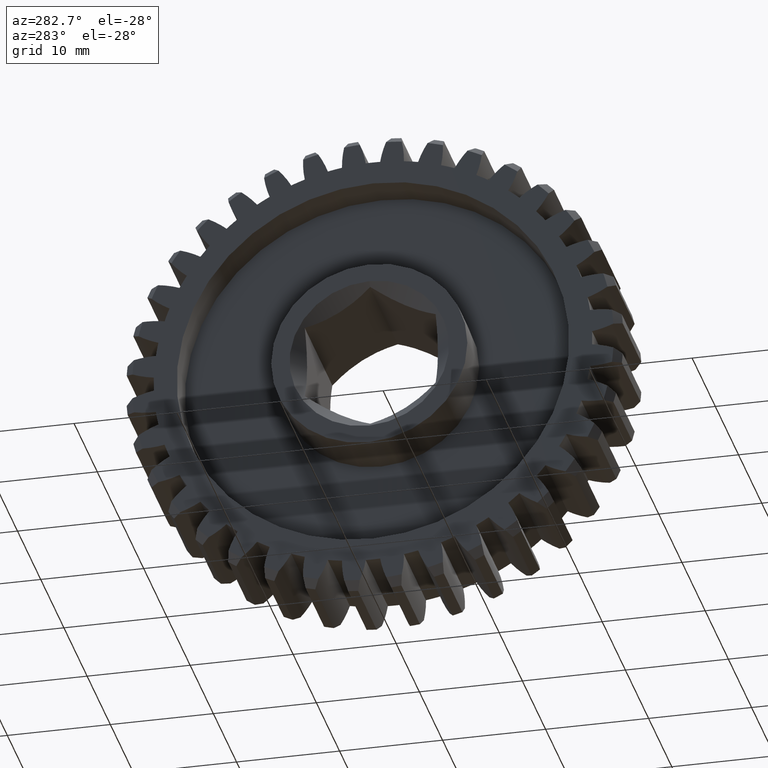
[diagram: clean part render]
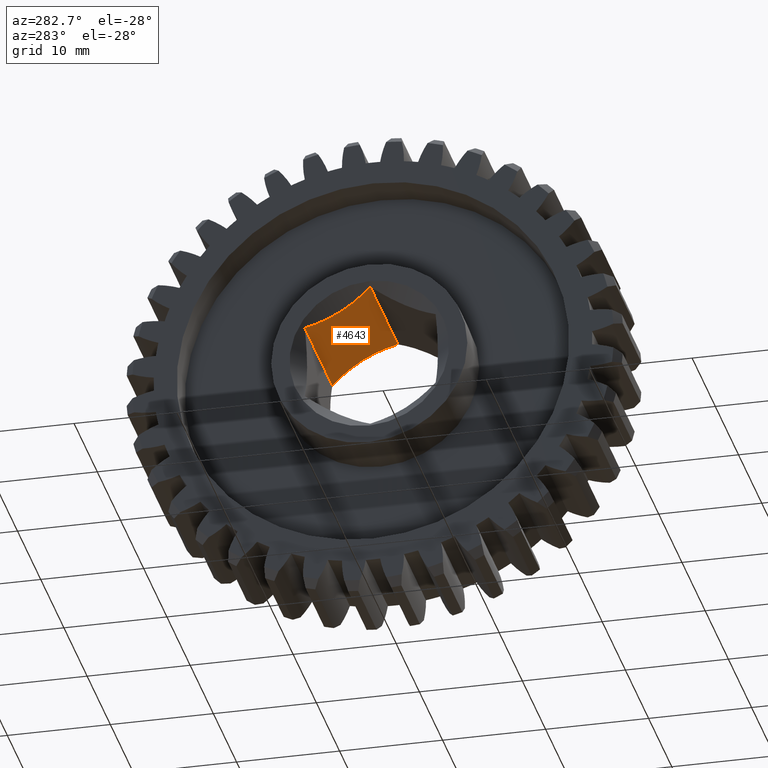
[diagram: same view with one face highlighted and labeled with its STEP entity id]
A machine part, auxiliary view. The second image highlights one B-rep face of the part: STEP entity #4643.
In plain terms, the highlighted planar face has unit normal (0, 0.5, 0.866).
Its self-contained STEP definition (entity closure, byte-faithful):
#87 = CARTESIAN_POINT ( 'NONE',  ( 0.3824470004003616697, 0.1036358322685734801, 0.2288409589368611274 ) ) ;
#361 = DIRECTION ( 'NONE',  ( 1.000000000000000000, -0.000000000000000000, -0.000000000000000000 ) ) ;
#441 = CARTESIAN_POINT ( 'NONE',  ( -0.02530907099823736378, 0.2104931627317132847, 0.1671468504290824220 ) ) ;
#732 = VECTOR ( 'NONE', #361, 39.37007874015748143 ) ;
#917 = ORIENTED_EDGE ( 'NONE', *, *, #2755, .F. ) ;
#965 = CARTESIAN_POINT ( 'NONE',  ( -0.03483126945468082575, 0.01964815077690897083, 0.2773312694546861135 ) ) ;
#969 = CARTESIAN_POINT ( 'NONE',  ( -0.06250000000000001388, -3.374144560972920525E-17, 0.2886751345948129210 ) ) ;
#1047 = EDGE_CURVE ( 'NONE', #8470, #1610, #6949, .T. ) ;
#1311 = CARTESIAN_POINT ( 'NONE',  ( 0.3835399852344827387, 0.1474422198941728046, 0.2035493292489962691 ) ) ;
#1342 = VERTEX_POINT ( 'NONE', #7492 ) ;
#1610 = VERTEX_POINT ( 'NONE', #8076 ) ;
#2153 = CARTESIAN_POINT ( 'NONE',  ( -0.06250000000000001388, 0.2500000000000000000, 0.1443375672974063495 ) ) ;
#2299 = ORIENTED_EDGE ( 'NONE', *, *, #1047, .F. ) ;
#2454 = CARTESIAN_POINT ( 'NONE',  ( -0.007447000400361507462, 0.1036358322685734384, 0.2288409589368610997 ) ) ;
#2669 = DIRECTION ( 'NONE',  ( 0.000000000000000000, 0.5000000000000003331, 0.8660254037844385966 ) ) ;
#2755 = EDGE_CURVE ( 'NONE', #1342, #8470, #4445, .T. ) ;
#2784 = ORIENTED_EDGE ( 'NONE', *, *, #3890, .T. ) ;
#3044 = CARTESIAN_POINT ( 'NONE',  ( 0.4211751345948129832, -3.050544101650794777E-17, 0.2886751345948129210 ) ) ;
#3241 = CARTESIAN_POINT ( 'NONE',  ( 0.4098976822178004298, 0.2304668795030758444, 0.1556150196744189307 ) ) ;
#3378 = FACE_OUTER_BOUND ( 'NONE', #5209, .T. ) ;
#3890 = EDGE_CURVE ( 'NONE', #1342, #8520, #4085, .T. ) ;
#3899 = DIRECTION ( 'NONE',  ( 0.000000000000000000, -0.8660254037844384856, 0.5000000000000002220 ) ) ;
#3966 = VECTOR ( 'NONE', #6109, 39.37007874015748143 ) ;
#3991 = PLANE ( 'NONE',  #4929 ) ;
#4030 = CARTESIAN_POINT ( 'NONE',  ( 0.3900339217850993800, 0.1794609254470762028, 0.1850633209789239175 ) ) ;
#4085 = LINE ( 'NONE', #2153, #3966 ) ;
#4292 = CARTESIAN_POINT ( 'NONE',  ( -0.01126284641317527001, 0.08218411835378909569, 0.2412261117401406363 ) ) ;
#4426 = CARTESIAN_POINT ( 'NONE',  ( -0.03489768221780037427, 0.2304668795030758166, 0.1556150196744189307 ) ) ;
#4445 = B_SPLINE_CURVE_WITH_KNOTS ( 'NONE', 3,
 ( #6312, #4426, #441, #5795, #8273, #7617, #8442, #2454, #4292, #7577, #965, #7654 ),
 .UNSPECIFIED., .F., .F.,
 ( 4, 2, 2, 2, 2, 4 ),
 ( 2.544317589395483281E-07, 0.001893759980981789791, 0.002840512755593215932, 0.003787265530204640337, 0.005680771079427491752, 0.007574276628650344033 ),
 .UNSPECIFIED. ) ;
#4599 = CARTESIAN_POINT ( 'NONE',  ( 0.4003090709982373707, 0.2104931627317132292, 0.1671468504290823942 ) ) ;
#4643 = ADVANCED_FACE ( 'NONE', ( #3378 ), #3991, .F. ) ;
#4748 = EDGE_CURVE ( 'NONE', #8520, #1610, #5140, .T. ) ;
#4929 = AXIS2_PLACEMENT_3D ( 'NONE', #5970, #2669, #3899 ) ;
#5140 = B_SPLINE_CURVE_WITH_KNOTS ( 'NONE', 3,
 ( #6095, #3241, #4599, #4030, #7307, #1311, #6682, #87, #5206, #6603, #7873, #3044 ),
 .UNSPECIFIED., .F., .F.,
 ( 4, 2, 2, 2, 2, 4 ),
 ( 2.544317589394232319E-07, 0.001893759980981790875, 0.002840512755593215064, 0.003787265530204640771, 0.005680771079427491752, 0.007574276628650343166 ),
 .UNSPECIFIED. ) ;
#5206 = CARTESIAN_POINT ( 'NONE',  ( 0.3862628464131754868, 0.08218411835378913732, 0.2412261117401406640 ) ) ;
#5209 = EDGE_LOOP ( 'NONE', ( #917, #2784, #7864, #2299 ) ) ;
#5789 = CARTESIAN_POINT ( 'NONE',  ( -0.04617513459481296240, -2.440635355885720504E-17, 0.2886751345948129210 ) ) ;
#5795 = CARTESIAN_POINT ( 'NONE',  ( -0.01503392178509943035, 0.1794609254470762028, 0.1850633209789239730 ) ) ;
#5970 = CARTESIAN_POINT ( 'NONE',  ( -0.06250000000000001388, 0.2500000000000000000, 0.1443375672974063495 ) ) ;
#6095 = CARTESIAN_POINT ( 'NONE',  ( 0.4211751345948129277, 0.2500000000000000000, 0.1443375672974063495 ) ) ;
#6109 = DIRECTION ( 'NONE',  ( 1.000000000000000000, -0.000000000000000000, -0.000000000000000000 ) ) ;
#6312 = CARTESIAN_POINT ( 'NONE',  ( -0.04617513459481287913, 0.2500000000000000000, 0.1443375672974063495 ) ) ;
#6603 = CARTESIAN_POINT ( 'NONE',  ( 0.4001044749122572020, 0.03987873766705875289, 0.2656511346677940533 ) ) ;
#6682 = CARTESIAN_POINT ( 'NONE',  ( 0.3825273468954632494, 0.1363723677476962048, 0.2099405113656538646 ) ) ;
#6949 = LINE ( 'NONE', #969, #732 ) ;
#7307 = CARTESIAN_POINT ( 'NONE',  ( 0.3873007206989255158, 0.1689363522086250735, 0.1911396861712496842 ) ) ;
#7492 = CARTESIAN_POINT ( 'NONE',  ( -0.04617513459481287913, 0.2500000000000000000, 0.1443375672974063495 ) ) ;
#7577 = CARTESIAN_POINT ( 'NONE',  ( -0.02510447491225711522, 0.03987873766705876677, 0.2656511346677940533 ) ) ;
#7617 = CARTESIAN_POINT ( 'NONE',  ( -0.008539985234482646778, 0.1474422198941728324, 0.2035493292489961581 ) ) ;
#7649 = CARTESIAN_POINT ( 'NONE',  ( 0.4211751345948129277, 0.2500000000000000000, 0.1443375672974063495 ) ) ;
#7654 = CARTESIAN_POINT ( 'NONE',  ( -0.04617513459481296240, -2.440635355885720504E-17, 0.2886751345948129210 ) ) ;
#7864 = ORIENTED_EDGE ( 'NONE', *, *, #4748, .T. ) ;
#7873 = CARTESIAN_POINT ( 'NONE',  ( 0.4098312694546809021, 0.01964815077690901593, 0.2773312694546861690 ) ) ;
#8076 = CARTESIAN_POINT ( 'NONE',  ( 0.4211751345948129832, -3.050544101650794777E-17, 0.2886751345948129210 ) ) ;
#8273 = CARTESIAN_POINT ( 'NONE',  ( -0.01230072069892553140, 0.1689363522086251290, 0.1911396861712497119 ) ) ;
#8442 = CARTESIAN_POINT ( 'NONE',  ( -0.007527346895463092429, 0.1363723677476961493, 0.2099405113656538091 ) ) ;
#8470 = VERTEX_POINT ( 'NONE', #5789 ) ;
#8520 = VERTEX_POINT ( 'NONE', #7649 ) ;